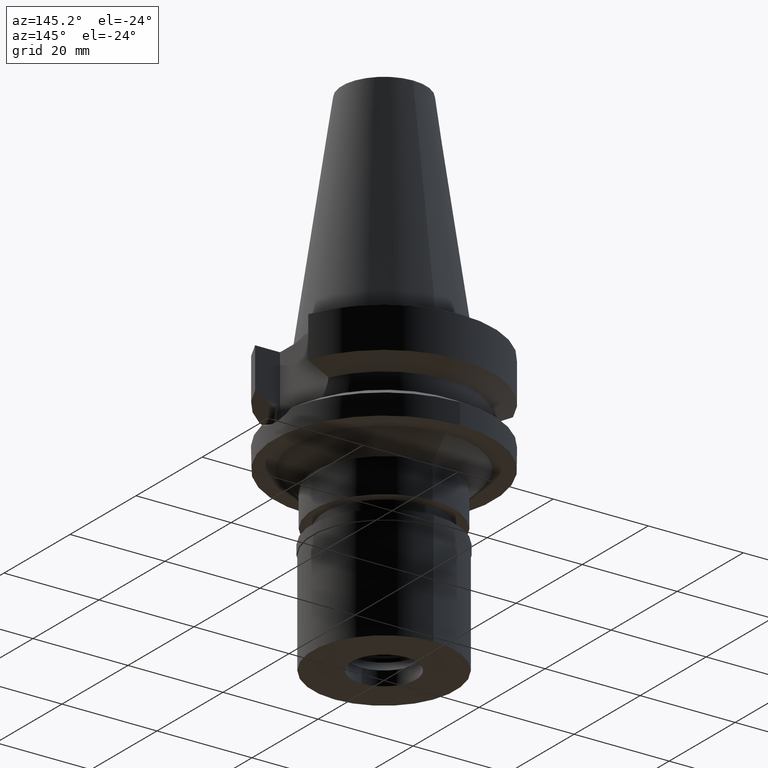
[diagram: clean part render]
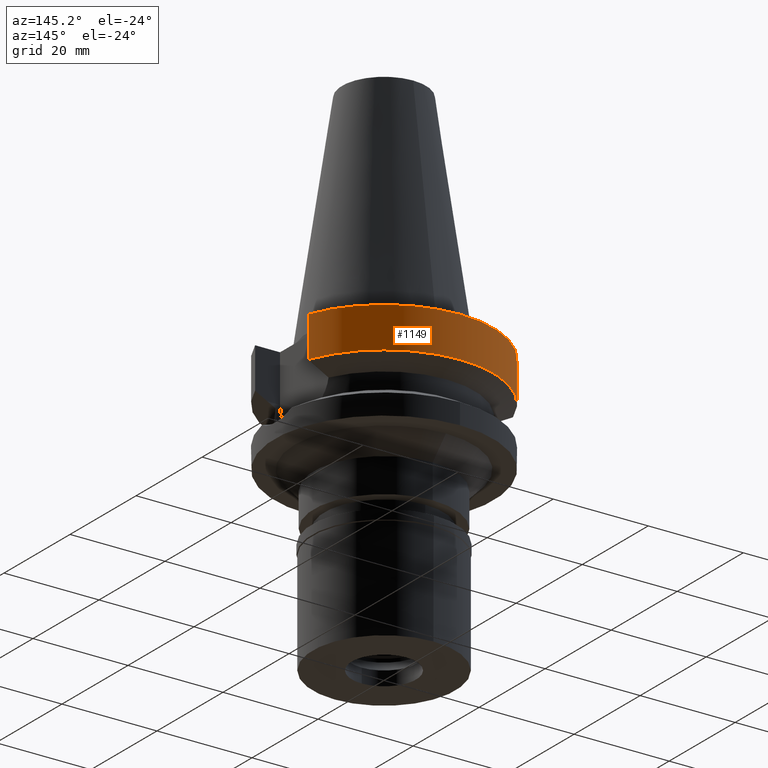
[diagram: same view with one face highlighted and labeled with its STEP entity id]
A machine part, auxiliary view. The second image highlights one B-rep face of the part: STEP entity #1149.
In plain terms, the highlighted cylindrical surface (partial cylindrical patch) has radius 23 mm, axis along (0, 0, -1).
Its self-contained STEP definition (entity closure, byte-faithful):
#138 = ORIENTED_EDGE ( 'NONE', *, *, #953, .F. ) ;
#206 = DIRECTION ( 'NONE',  ( 0.0000000000000000000, -1.000000000000000000, 0.0000000000000000000 ) ) ;
#230 = CARTESIAN_POINT ( 'NONE',  ( 21.54524309446999908, 8.050000000000000711, -1.000000000000000000 ) ) ;
#278 = DIRECTION ( 'NONE',  ( 0.0000000000000000000, 0.0000000000000000000, -1.000000000000000000 ) ) ;
#407 = DIRECTION ( 'NONE',  ( -1.843134485870992695E-08, 4.933012910310982734E-08, 0.9999999999999985567 ) ) ;
#453 = EDGE_CURVE ( 'NONE', #2617, #869, #1779, .T. ) ;
#557 = CARTESIAN_POINT ( 'NONE',  ( -21.54524309446999908, 8.050000000000000711, -1.000000000000000000 ) ) ;
#869 = VERTEX_POINT ( 'NONE', #1772 ) ;
#872 = CYLINDRICAL_SURFACE ( 'NONE', #1495, 23.00000000000000000 ) ;
#953 = EDGE_CURVE ( 'NONE', #2617, #1768, #2195, .T. ) ;
#958 = ORIENTED_EDGE ( 'NONE', *, *, #2573, .F. ) ;
#972 = CIRCLE ( 'NONE', #2647, 23.00000000000000000 ) ;
#1052 = ORIENTED_EDGE ( 'NONE', *, *, #453, .T. ) ;
#1114 = VECTOR ( 'NONE', #407, 1000.000000000000114 ) ;
#1149 = ADVANCED_FACE ( 'NONE', ( #2950 ), #872, .T. ) ;
#1207 = EDGE_CURVE ( 'NONE', #2722, #1768, #972, .T. ) ;
#1217 = DIRECTION ( 'NONE',  ( 9.134696492506688232E-08, 2.444834607303914619E-07, -0.9999999999999659162 ) ) ;
#1335 = DIRECTION ( 'NONE',  ( 0.0000000000000000000, 0.0000000000000000000, -1.000000000000000000 ) ) ;
#1382 = EDGE_LOOP ( 'NONE', ( #958, #2031, #138, #1052 ) ) ;
#1495 = AXIS2_PLACEMENT_3D ( 'NONE', #1785, #1335, #206 ) ;
#1536 = CARTESIAN_POINT ( 'NONE',  ( -21.54524309446999908, 8.050000000000000711, -1.000000000000000000 ) ) ;
#1768 = VERTEX_POINT ( 'NONE', #230 ) ;
#1772 = CARTESIAN_POINT ( 'NONE',  ( -21.54524231189000005, 8.050002094537999753, -9.567194606710000215 ) ) ;
#1779 = CIRCLE ( 'NONE', #2843, 23.00000000000000000 ) ;
#1785 = CARTESIAN_POINT ( 'NONE',  ( 0.0000000000000000000, 1.877628472452999886E-14, 53.32000000000000028 ) ) ;
#1912 = CARTESIAN_POINT ( 'NONE',  ( 0.0000000000000000000, 1.877628472452999886E-14, -1.000000000000000000 ) ) ;
#1963 = CARTESIAN_POINT ( 'NONE',  ( 0.0000000000000000000, 1.093341284896999988E-14, -9.567208369710998639 ) ) ;
#2031 = ORIENTED_EDGE ( 'NONE', *, *, #1207, .T. ) ;
#2195 = LINE ( 'NONE', #2904, #1114 ) ;
#2556 = VECTOR ( 'NONE', #1217, 1000.000000000000114 ) ;
#2573 = EDGE_CURVE ( 'NONE', #2722, #869, #2610, .T. ) ;
#2610 = LINE ( 'NONE', #557, #2556 ) ;
#2617 = VERTEX_POINT ( 'NONE', #2791 ) ;
#2647 = AXIS2_PLACEMENT_3D ( 'NONE', #1912, #278, #2840 ) ;
#2722 = VERTEX_POINT ( 'NONE', #1536 ) ;
#2791 = CARTESIAN_POINT ( 'NONE',  ( 21.54524325238000060, 8.049999577379001181, -9.567211146543000311 ) ) ;
#2840 = DIRECTION ( 'NONE',  ( 0.0000000000000000000, 1.000000000000000000, 0.0000000000000000000 ) ) ;
#2843 = AXIS2_PLACEMENT_3D ( 'NONE', #1963, #2846, #2872 ) ;
#2846 = DIRECTION ( 'NONE',  ( 0.0000000000000000000, 0.0000000000000000000, 1.000000000000000000 ) ) ;
#2872 = DIRECTION ( 'NONE',  ( 0.0000000000000000000, 1.000000000000000000, 0.0000000000000000000 ) ) ;
#2904 = CARTESIAN_POINT ( 'NONE',  ( 21.54524325238000060, 8.049999577379001181, -9.567211146543000311 ) ) ;
#2950 = FACE_OUTER_BOUND ( 'NONE', #1382, .T. ) ;